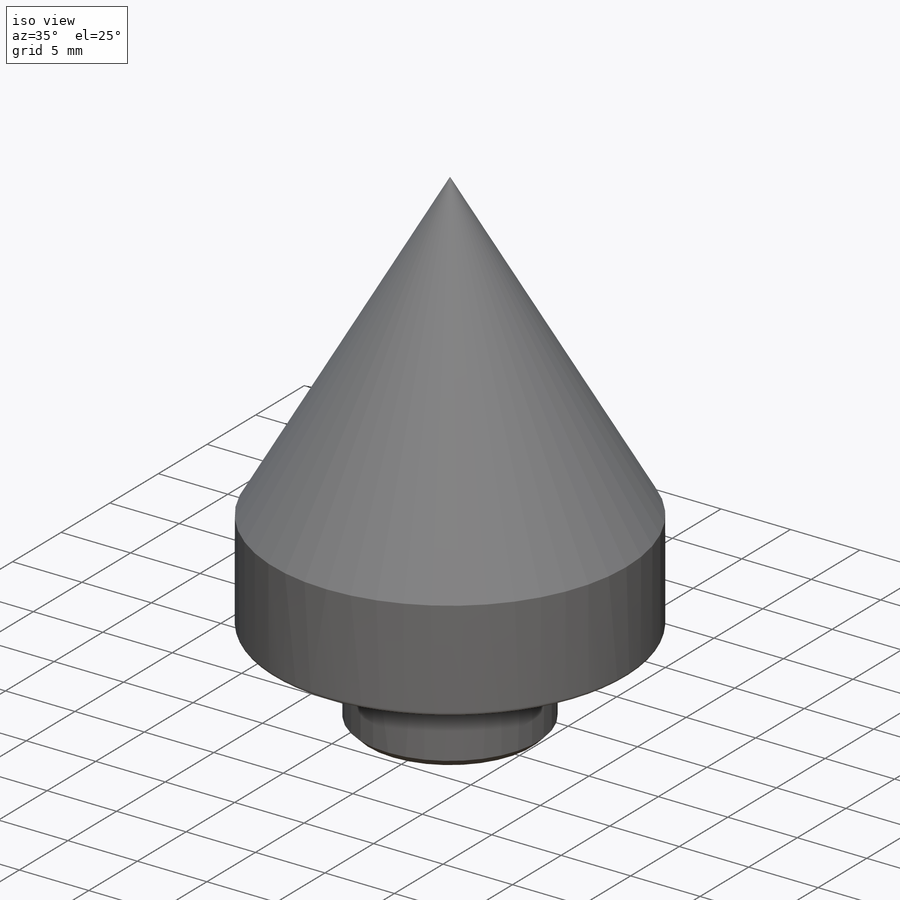
[diagram: iso view]
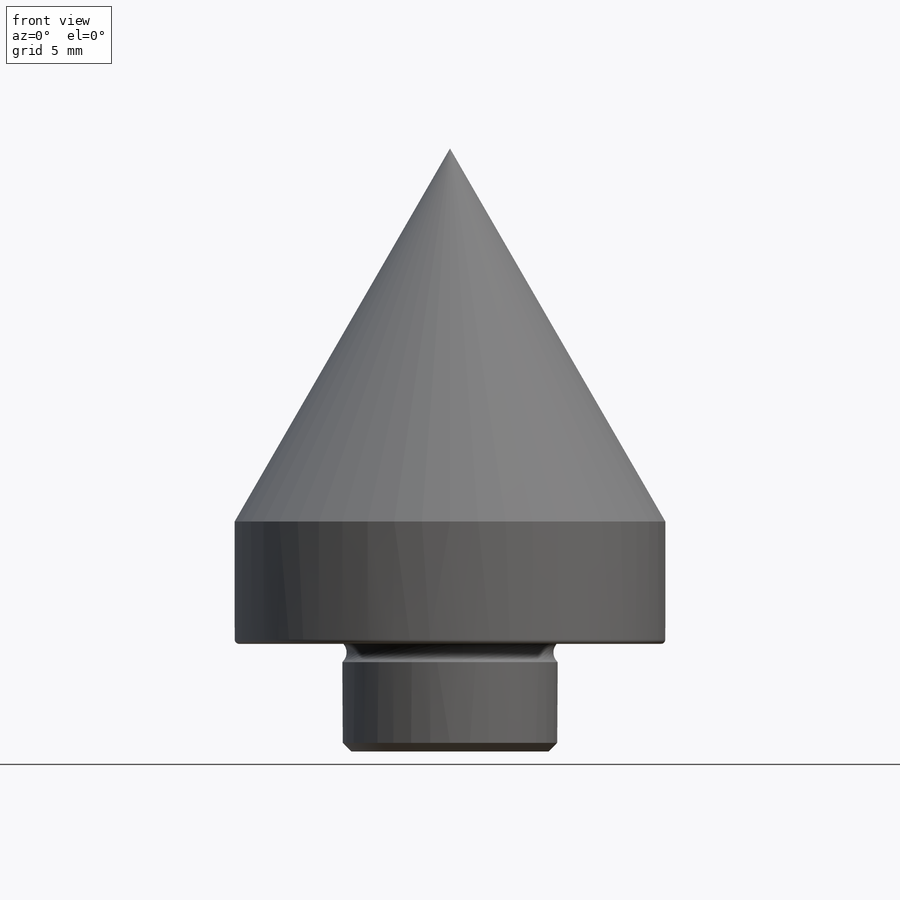
[diagram: front view]
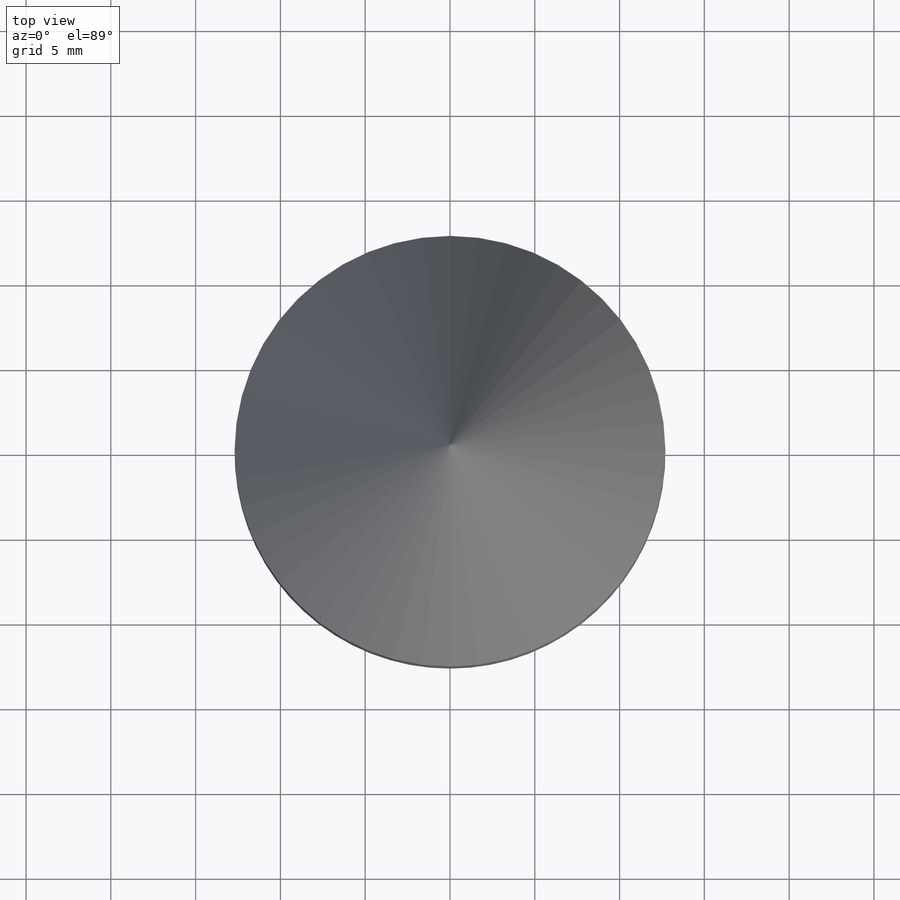
[diagram: top view]
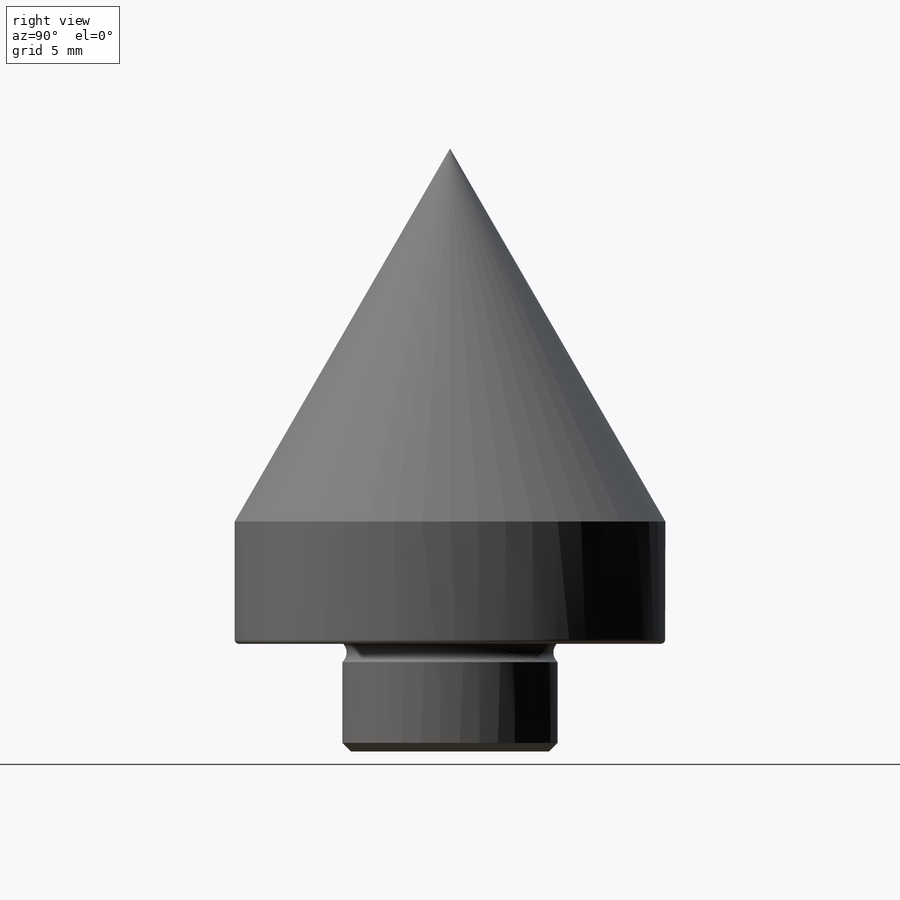
[diagram: right view]
SOLIDWORKS PART (.sldprt)
format: sldprt  version: not decoded by parser v0  size: 345,600 bytes
history: native  units: mm
features: sketch x4, plane x3, material x1, revolve x1, cut_revolve x1, chamfer x1, fillet x1, hole x1, thread x1 + 2 further entries (+9 scaffold rows collapsed)
feature tree (25):
  scaffold x9  (default folders/planes/origin — collapsed)
  material  "Material <not specified>"
  plane  "Plane X-Y"
  plane  "Plane X-Z"
  plane  "Plane Y-Z"
  "Axis - Y"
  "Axis - Z"
  sketch  "Sketch1"  dims[c1.D1=12.7mm c1.D2=6.35mm c1.D3=25.4mm c1.D4=35.56mm c1.D5=~64.12459mm c2.D5=30.0deg c2.D6=~7.212955mm]
  revolve  "Revolve1"  Angle=360deg
  sketch  "Sketch2"  dims[D1=1.524mm D2=0.254mm D3=0.254mm]
  cut_revolve  "Cut-Revolve1"  Angle=360deg
  chamfer  "Chamfer1"  Distance=0.508mm Angle=45deg
  fillet  "Fillet1"  Radius=0.254mm
  hole  "#10-32 Tapped Hole1"  Diameter=4.0386mm Depth=10.3124mm
  sketch  "Sketch4"
  sketch  "Sketch3"  dims[hole-wizard template sketch: 40 standard entries collapsed; hole parameters kept: c13.Tap Drill Depth=10.3124mm c13.Near C'Sink Dia.=4.826mm c13.D4=~33.297463mm c13.Near C'Sink Angle=90.0deg c14.D5=~14.816244mm c14.Drill Angle=118.0deg]
  thread  "Hole Thread1"  Diameter=6.35mm  [1 undecoded]
decode coverage: 9 of 10 modeling features carry decoded parameters; 2 rows unclassified (native names shown)
note: ~ marks probable driven/reference dimensions
note: 1 parameter value undecoded
note: suppression state not decoded; provenance and decode notes live in map.json
